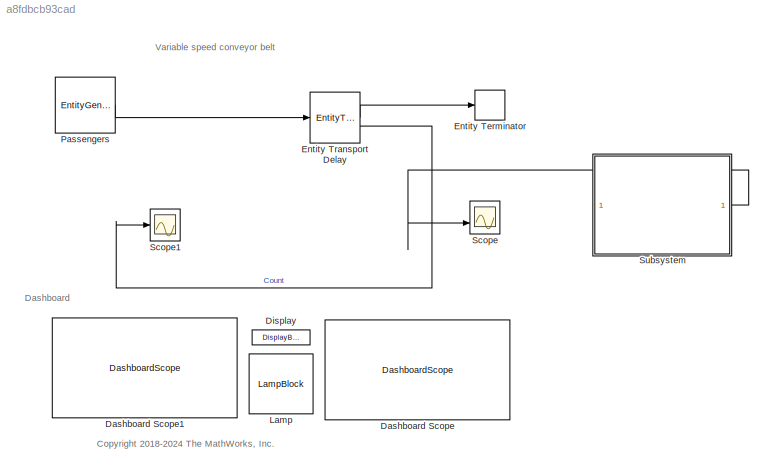
MODEL slx_a8fdbcb93cad
KIND model
CONFIG AbsTol = auto
CONFIG EnableMultiTasking = off
CONFIG FixedStep = auto
CONFIG MaxStep = auto
CONFIG MinStep = auto
CONFIG PostLoadFcn = Simulink.defineIntEnumType('OperationMode', {'Idle', 'OnDemand', 'Max'}, [0; 1; 2]);
CONFIG RelTol = 1e-3
CONFIG SampleTimeConstraint = Unconstrained
CONFIG SolverName = VariableStepAuto
CONFIG StartTime = 0.0
CONFIG StopTime = 900
BLOCK [DashboardScope] Dashboard Scope
  Ymax = 110
  Ymin = 0
BLOCK [DashboardScope] Dashboard Scope1
  Ymax = 1.1000000000000001
  Ymin = 0
BLOCK [DisplayBlock] Display
  LabelPosition = Hide
  Transparency = 1
BLOCK [EntityTerminator] Entity Terminator
  InputPortMap = u0
  InputPortMessageModes = m
BLOCK [EntityTransportDelay] Entity Transport Delay
  InputPortMessageModes = m,n
  OutputPortMessageModes = m,n
  ShowNumberEntitiesInBlock = on
BLOCK [LampBlock] Lamp
BLOCK [EntityGenerator] Passengers
  EntityType = Structured
  EntityTypeName = Entity
  GenerateEntityAtSimulationStart = off
  IntergenerationTimeAction = persistent rngInit;\nif isempty(rngInit)\n    seed = 12345;\n    rng(seed);\n    rngInit = true;\nend\n\n% Pattern: Exponential distribution\npersistent time;\nif isempty(time)\n    time = 0;\nend\nif time < 180\n    lambda = 2;\nelseif time < 240\n    lambda = .5;\nelseif time < 300\n    lambda = .1;\nelse\n    time = 0;\n    lambda = 2;\nend\n% Use inverse transform sampling to\n% generate dt according to the exponent...<+70ch>
  OutputPortMap = o3
  OutputPortMessageModes = m
  Period = 0.1
  TimeSource = MATLAB action
BLOCK [Scope] Scope
  Floating = off
  NumInputPorts = 2
  ScopeSpecificationString = Simulink.scopes.TimeScopeBlockCfg('CurrentConfiguration', extmgr.ConfigurationSet(extmgr.Configuration('Core','General UI',true),extmgr.Configuration('Core','Source UI',true),extmgr.Configuration('Sources','WiredSimulink',true,'DataLogging',true),extmgr.Configuration('Visuals','Time Domain',true,'SerializedDisplays',{struct('MinYLimReal','-12.875','MaxYLimReal','115.875','YLabelReal','','MinYLimMa...<+2303ch>
BLOCK [Scope] Scope1
  Floating = off
  NumInputPorts = 1
  ScopeSpecificationString = Simulink.scopes.TimeScopeBlockCfg('CurrentConfiguration', extmgr.ConfigurationSet(extmgr.Configuration('Core','General UI',true),extmgr.Configuration('Core','Source UI',true),extmgr.Configuration('Sources','WiredSimulink',true,'DataLoggingVariableName','ScopeData1'),extmgr.Configuration('Visuals','Time Domain',true),extmgr.Configuration('Tools','Plot Navigation',true),extmgr.Configuration('Tools',...<+40ch>
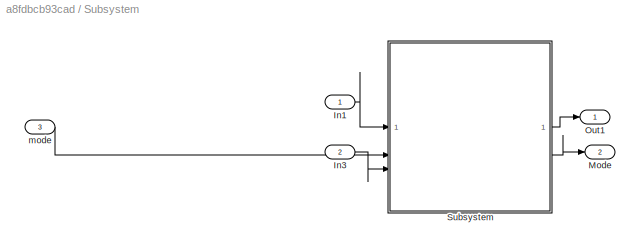
BLOCK [SubSystem] Subsystem
BLOCK [Inport] Subsystem/In1
BLOCK [Inport] Subsystem/In3
  Port = 2
BLOCK [Outport] Subsystem/Mode
  Port = 2
BLOCK [Outport] Subsystem/Out1
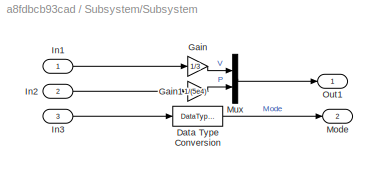
BLOCK [SubSystem] Subsystem/Subsystem
  Commented = on
BLOCK [DataTypeConversion] Subsystem/Subsystem/Data Type Conversion
  OutDataTypeStr = Enum: OperationMode
  RndMeth = Floor
  SaturateOnIntegerOverflow = off
BLOCK [Gain] Subsystem/Subsystem/Gain
  Gain = 1/3
BLOCK [Gain] Subsystem/Subsystem/Gain1
  Gain = 1/(5e4)
BLOCK [Inport] Subsystem/Subsystem/In1
BLOCK [Inport] Subsystem/Subsystem/In2
  Port = 2
BLOCK [Inport] Subsystem/Subsystem/In3
  Port = 3
BLOCK [Outport] Subsystem/Subsystem/Mode
  Port = 2
BLOCK [Mux] Subsystem/Subsystem/Mux
  DisplayOption = bar
  Inputs = 2
BLOCK [Outport] Subsystem/Subsystem/Out1
BLOCK [Inport] Subsystem/mode
  Port = 3
ANNOTATION (root): <copyright redacted>
ANNOTATION (root): Dashboard
ANNOTATION (root): Variable speed conveyor belt
LINE Entity Transport Delay:1 -> Entity Terminator:1
LINE Entity Transport Delay:2 -> Scope1:1
LINE Passengers:1 -> Entity Transport Delay:1
LINE Subsystem/In1:1 -> Subsystem/Subsystem:1
LINE Subsystem/In3:1 -> Subsystem/Subsystem:3
LINE Subsystem/Subsystem/Data Type Conversion:1 -> Subsystem/Subsystem/Mode:1
LINE Subsystem/Subsystem/Gain1:1 -> Subsystem/Subsystem/Mux:2
LINE Subsystem/Subsystem/Gain:1 -> Subsystem/Subsystem/Mux:1
LINE Subsystem/Subsystem/In1:1 -> Subsystem/Subsystem/Gain:1
LINE Subsystem/Subsystem/In2:1 -> Subsystem/Subsystem/Gain1:1
LINE Subsystem/Subsystem/In3:1 -> Subsystem/Subsystem/Data Type Conversion:1
LINE Subsystem/Subsystem/Mux:1 -> Subsystem/Subsystem/Out1:1
LINE Subsystem/Subsystem:1 -> Subsystem/Out1:1
LINE Subsystem/Subsystem:2 -> Subsystem/Mode:1
LINE Subsystem/mode:1 -> Subsystem/Subsystem:2
LINE Subsystem:1 -> Scope:2
